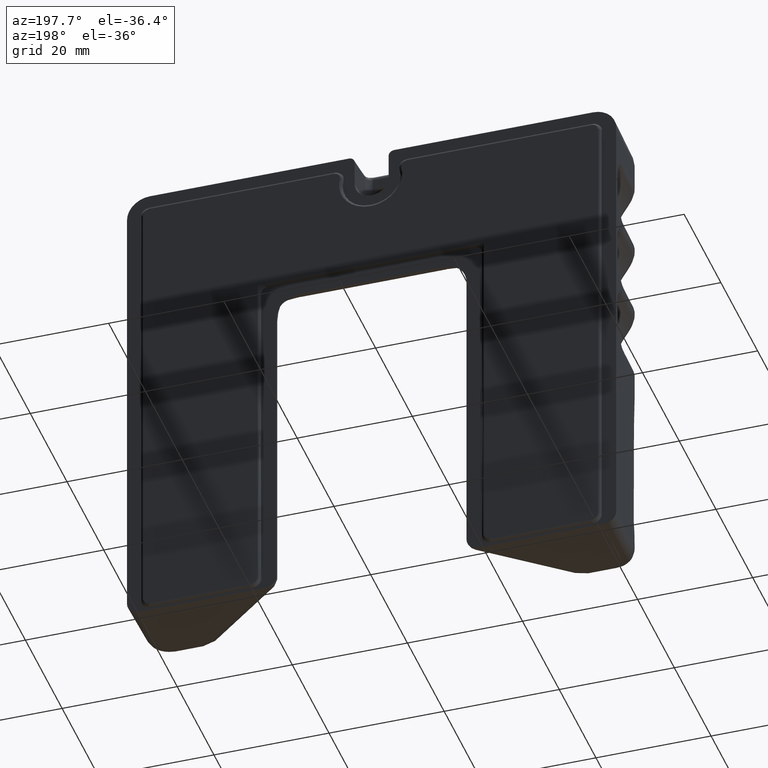
[diagram: clean part render]
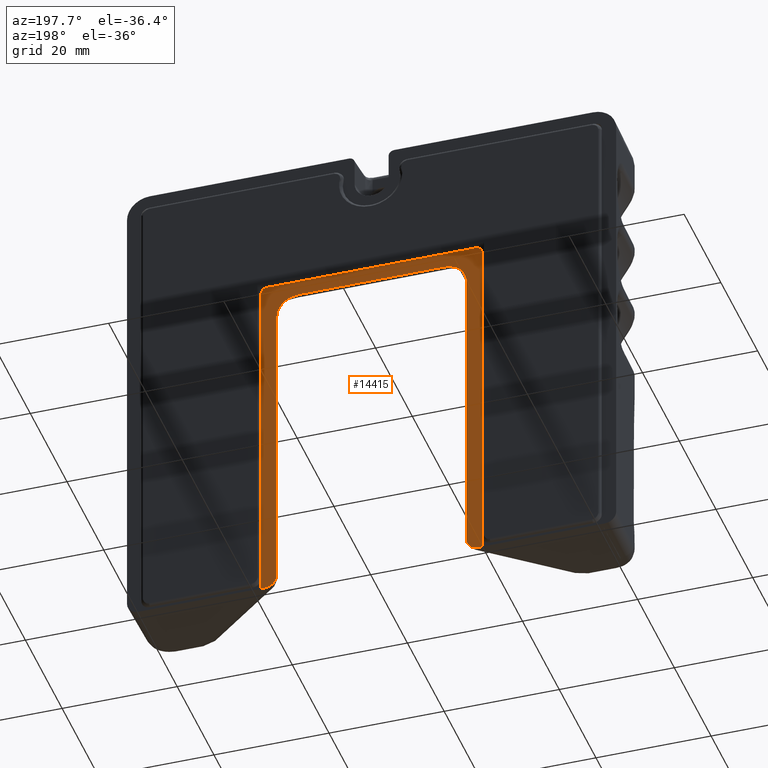
[diagram: same view with one face highlighted and labeled with its STEP entity id]
A machine part, auxiliary view. The second image highlights one B-rep face of the part: STEP entity #14415.
In plain terms, the highlighted face is a freeform B-spline surface patch.
Its self-contained STEP definition (entity closure, byte-faithful):
#11726=CARTESIAN_POINT('',(19.198063139288450,-0.499999999984567,1.698063139219495));
#11727=VERTEX_POINT('',#11726);
#11733=CARTESIAN_POINT('',(18.198063139290351,-0.499999999999945,2.698063139219500));
#11734=VERTEX_POINT('',#11733);
#11735=CARTESIAN_POINT('',(18.198063139290351,-0.499999999999945,2.698063139219500));
#11736=CARTESIAN_POINT('',(18.345379309349060,-0.500000000001553,2.698300975594655));
#11737=CARTESIAN_POINT('',(18.566047310219229,-0.500000000002642,2.648337149708755));
#11738=CARTESIAN_POINT('',(18.846381656512939,-0.500000000001154,2.475588377576360));
#11739=CARTESIAN_POINT('',(19.021190333574580,-0.499999999998116,2.287423140607872));
#11740=CARTESIAN_POINT('',(19.161434794748899,-0.499999999992543,2.017058390849730));
#11741=CARTESIAN_POINT('',(19.198177738437199,-0.499999999987791,1.820800222550557));
#11742=CARTESIAN_POINT('',(19.198063139288450,-0.499999999984567,1.698063139219495));
#11743=B_SPLINE_CURVE_WITH_KNOTS('',3,(#11735,#11736,#11737,#11738,#11739,#11740,#11741,#11742),.UNSPECIFIED.,.F.,.U.,(4,1,1,1,1,4),(0.000000217534111,0.441800759727600,0.662713451856316,0.981768884636849,1.202673225398145,1.570835744366782),.UNSPECIFIED.);
#11744=EDGE_CURVE('',#11734,#11727,#11743,.T.);
#11825=CARTESIAN_POINT('',(-18.198063139290749,-0.499999999999945,2.698063139219500));
#11826=VERTEX_POINT('',#11825);
#11832=CARTESIAN_POINT('',(-19.198063139222150,-0.499999999984567,1.698063139219495));
#11833=VERTEX_POINT('',#11832);
#11834=CARTESIAN_POINT('',(-19.198063139222150,-0.499999999984567,1.698063139219495));
#11835=CARTESIAN_POINT('',(-19.198274863167910,-0.499999999988435,1.845352698695875));
#11836=CARTESIAN_POINT('',(-19.137330755832242,-0.499999999994857,2.115155949413070));
#11837=CARTESIAN_POINT('',(-18.917993286070381,-0.500000000000437,2.418601101221528));
#11838=CARTESIAN_POINT('',(-18.606888732747471,-0.500000000002806,2.637663073999238));
#11839=CARTESIAN_POINT('',(-18.353571719177459,-0.500000000001642,2.698341549431434));
#11840=CARTESIAN_POINT('',(-18.198063139290749,-0.499999999999945,2.698063139219500));
#11841=B_SPLINE_CURVE_WITH_KNOTS('',3,(#11834,#11835,#11836,#11837,#11838,#11839,#11840),.UNSPECIFIED.,.F.,.U.,(4,1,1,1,4),(0.000000217532357,0.441800759701740,0.809930226240558,1.104490639122075,1.570835744278690),.UNSPECIFIED.);
#11842=EDGE_CURVE('',#11833,#11826,#11841,.T.);
#12062=CARTESIAN_POINT('',(18.198063139290351,-0.499999999999945,2.698063139219500));
#12063=CARTESIAN_POINT('',(-18.198063139290749,-0.499999999999945,2.698063139219500));
#12064=QUASI_UNIFORM_CURVE('',1,(#12062,#12063),.UNSPECIFIED.,.F.,.U.);
#12065=EDGE_CURVE('',#11734,#11826,#12064,.T.);
#12185=CARTESIAN_POINT('',(-19.198063139290451,-0.499999999999945,-58.999999999911402));
#12186=VERTEX_POINT('',#12185);
#12187=CARTESIAN_POINT('',(-19.198063139222150,-0.499999999984567,1.698063139219495));
#12188=CARTESIAN_POINT('',(-19.198063139290451,-0.499999999999945,-58.999999999911402));
#12189=QUASI_UNIFORM_CURVE('',1,(#12187,#12188),.UNSPECIFIED.,.F.,.U.);
#12190=EDGE_CURVE('',#11833,#12186,#12189,.T.);
#12205=CARTESIAN_POINT('',(19.198063139290351,-0.499999999999945,-58.999999999867697));
#12206=VERTEX_POINT('',#12205);
#12207=CARTESIAN_POINT('',(19.198063139288450,-0.499999999984567,1.698063139219495));
#12208=CARTESIAN_POINT('',(19.198063139290351,-0.499999999999945,-58.999999999867697));
#12209=QUASI_UNIFORM_CURVE('',1,(#12207,#12208),.UNSPECIFIED.,.F.,.U.);
#12210=EDGE_CURVE('',#11727,#12206,#12209,.T.);
#12775=CARTESIAN_POINT('',(-16.298632956855901,-0.500000000000000,-2.719094153172280));
#12776=VERTEX_POINT('',#12775);
#12788=CARTESIAN_POINT('',(-16.446659315282801,-0.500000000000000,-3.348939135636975));
#12789=VERTEX_POINT('',#12788);
#12797=CARTESIAN_POINT('',(-16.298632956855901,-0.500000000000000,-2.719094153172280));
#12798=CARTESIAN_POINT('',(-16.361248522337672,-0.500000000000000,-2.925625015089576));
#12799=CARTESIAN_POINT('',(-16.410720519325629,-0.500000000000000,-3.136139351958470));
#12800=CARTESIAN_POINT('',(-16.446659315282801,-0.500000000000000,-3.348939135636975));
#12801=B_SPLINE_CURVE_WITH_KNOTS('',3,(#12797,#12798,#12799,#12800),.UNSPECIFIED.,.F.,.U.,(4,4),(6.429248E-010,0.647447756906817),.UNSPECIFIED.);
#12802=EDGE_CURVE('',#12776,#12789,#12801,.T.);
#12871=CARTESIAN_POINT('',(-13.780905846815060,-0.500000000000000,-0.201367043136923));
#12872=VERTEX_POINT('',#12871);
#12884=CARTESIAN_POINT('',(-13.780905846815060,-0.500000000000000,-0.201367043136923));
#12885=CARTESIAN_POINT('',(-14.080842573910511,-0.500000000000000,-0.291039632090472));
#12886=CARTESIAN_POINT('',(-14.367880028113870,-0.500000000000000,-0.406653136922836));
#12887=CARTESIAN_POINT('',(-14.772538363730821,-0.500000000000000,-0.632154921716088));
#12888=CARTESIAN_POINT('',(-14.903100172115600,-0.500000000000000,-0.716018517901305));
#12889=CARTESIAN_POINT('',(-15.091473498432959,-0.500000000000000,-0.856835124789537));
#12890=CARTESIAN_POINT('',(-15.152829499428121,-0.500000000000000,-0.906175924452511));
#12891=CARTESIAN_POINT('',(-15.270856119547810,-0.500000000000000,-1.008281070637108));
#12892=CARTESIAN_POINT('',(-15.441647436504191,-0.500000000000000,-1.167138590662223));
#12893=CARTESIAN_POINT('',(-15.593858993271770,-0.500000000000000,-1.342944020126467));
#12894=CARTESIAN_POINT('',(-15.733955713787591,-0.500000000000000,-1.529800246026078));
#12895=CARTESIAN_POINT('',(-15.778636010906981,-0.500000000000000,-1.593926970928529));
#12896=CARTESIAN_POINT('',(-15.864012944349080,-0.500000000000000,-1.725814198657997));
#12897=CARTESIAN_POINT('',(-15.904327849315640,-0.500000000000000,-1.792994765142555));
#12898=CARTESIAN_POINT('',(-16.094117759669860,-0.500000000000000,-2.133244264479085));
#12899=CARTESIAN_POINT('',(-16.209425550039199,-0.500000000000000,-2.420713366518392));
#12900=CARTESIAN_POINT('',(-16.298632956855879,-0.500000000000000,-2.719094153172291));
#12901=B_SPLINE_CURVE_WITH_KNOTS('',3,(#12884,#12885,#12886,#12887,#12888,#12889,#12890,#12891,#12892,#12893,#12894,#12895,#12896,#12897,#12898,#12899,#12900),.UNSPECIFIED.,.F.,.U.,(4,2,2,2,1,2,2,2,4),(0.0,0.250000000000002,0.375000000000003,0.437500000000003,0.500000000000003,0.625000000000004,0.687500000000004,0.750000000000003,1.0),.UNSPECIFIED.);
#12902=EDGE_CURVE('',#12872,#12776,#12901,.T.);
#13005=CARTESIAN_POINT('',(-13.151060864280240,-0.500000000000000,-0.053340684704990));
#13006=VERTEX_POINT('',#13005);
#13007=CARTESIAN_POINT('',(-13.151060864280240,-0.500000000000000,-0.053340684704990));
#13008=CARTESIAN_POINT('',(-13.363864085242771,-0.500000000000000,-0.089252926298915));
#13009=CARTESIAN_POINT('',(-13.574386073158530,-0.500000000000000,-0.138725342376405));
#13010=CARTESIAN_POINT('',(-13.780905846815060,-0.500000000000000,-0.201367043136923));
#13011=B_SPLINE_CURVE_WITH_KNOTS('',3,(#13007,#13008,#13009,#13010),.UNSPECIFIED.,.F.,.U.,(4,4),(6.479680E-010,0.647449496093545),.UNSPECIFIED.);
#13012=EDGE_CURVE('',#13006,#12872,#13011,.T.);
#13144=CARTESIAN_POINT('',(13.780905846882400,-0.500000000000000,-0.201367043134239));
#13145=VERTEX_POINT('',#13144);
#13157=CARTESIAN_POINT('',(13.151060864346441,-0.500000000000000,-0.053340684704990));
#13158=VERTEX_POINT('',#13157);
#13166=CARTESIAN_POINT('',(13.780905846882400,-0.500000000000000,-0.201367043134239));
#13167=CARTESIAN_POINT('',(13.574378781963800,-0.499999999999999,-0.138751315556295));
#13168=CARTESIAN_POINT('',(13.363859044309979,-0.500000000000001,-0.089279401761617));
#13169=CARTESIAN_POINT('',(13.151060864346441,-0.500000000000000,-0.053340684704990));
#13170=B_SPLINE_CURVE_WITH_KNOTS('',3,(#13166,#13167,#13168,#13169),.UNSPECIFIED.,.F.,.U.,(4,4),(6.428654E-010,0.647447756976893),.UNSPECIFIED.);
#13171=EDGE_CURVE('',#13145,#13158,#13170,.T.);
#13240=CARTESIAN_POINT('',(16.298632956924799,-0.500000000000000,-2.719094153171055));
#13241=VERTEX_POINT('',#13240);
#13253=CARTESIAN_POINT('',(16.298632956924799,-0.500000000000000,-2.719094153171055));
#13254=CARTESIAN_POINT('',(16.208960367971070,-0.500000000000000,-2.419157426075236));
#13255=CARTESIAN_POINT('',(16.093346863133199,-0.500000000000000,-2.132119971874304));
#13256=CARTESIAN_POINT('',(15.867845078339490,-0.500000000000000,-1.727461636257350));
#13257=CARTESIAN_POINT('',(15.783981482154120,-0.500000000000000,-1.596899827872619));
#13258=CARTESIAN_POINT('',(15.643164875265670,-0.500000000000000,-1.408526501555391));
#13259=CARTESIAN_POINT('',(15.593824075602660,-0.500000000000000,-1.347170500560333));
#13260=CARTESIAN_POINT('',(15.491718929417980,-0.500000000000000,-1.229143880440812));
#13261=CARTESIAN_POINT('',(15.332861409392731,-0.500000000000000,-1.058352563484662));
#13262=CARTESIAN_POINT('',(15.157055979928369,-0.500000000000000,-0.906141006717314));
#13263=CARTESIAN_POINT('',(14.970199754028640,-0.500000000000000,-0.766044286201697));
#13264=CARTESIAN_POINT('',(14.906073029126150,-0.500000000000000,-0.721363989082381));
#13265=CARTESIAN_POINT('',(14.774185801396611,-0.500000000000000,-0.635987055640392));
#13266=CARTESIAN_POINT('',(14.707005234912080,-0.500000000000000,-0.595672150673927));
#13267=CARTESIAN_POINT('',(14.366755735575531,-0.500000000000000,-0.405882240320049));
#13268=CARTESIAN_POINT('',(14.079286633536251,-0.500000000000000,-0.290574449950862));
#13269=CARTESIAN_POINT('',(13.780905846882400,-0.500000000000000,-0.201367043134240));
#13270=B_SPLINE_CURVE_WITH_KNOTS('',3,(#13253,#13254,#13255,#13256,#13257,#13258,#13259,#13260,#13261,#13262,#13263,#13264,#13265,#13266,#13267,#13268,#13269),.UNSPECIFIED.,.F.,.U.,(4,2,2,2,1,2,2,2,4),(0.0,0.250000000000002,0.375000000000002,0.437500000000001,0.500000000000001,0.625000000000000,0.687500000000000,0.750000000000000,1.0),.UNSPECIFIED.);
#13271=EDGE_CURVE('',#13241,#13145,#13270,.T.);
#13374=CARTESIAN_POINT('',(16.446659315349049,-0.500000000000000,-3.348939135637210));
#13375=VERTEX_POINT('',#13374);
#13376=CARTESIAN_POINT('',(16.446659315349049,-0.500000000000000,-3.348939135637210));
#13377=CARTESIAN_POINT('',(16.410746995111889,-0.499999999999999,-3.136134304554827));
#13378=CARTESIAN_POINT('',(16.361274492954269,-0.500000000000001,-2.925617739128195));
#13379=CARTESIAN_POINT('',(16.298632956924799,-0.500000000000000,-2.719094153171055));
#13380=B_SPLINE_CURVE_WITH_KNOTS('',3,(#13376,#13377,#13378,#13379),.UNSPECIFIED.,.F.,.U.,(4,4),(6.479843E-010,0.647449496024783),.UNSPECIFIED.);
#13381=EDGE_CURVE('',#13375,#13241,#13380,.T.);
#13496=CARTESIAN_POINT('',(-16.500000000001648,-0.499999999984567,-4.0));
#13497=VERTEX_POINT('',#13496);
#13498=CARTESIAN_POINT('',(-16.446659315282801,-0.500000000000000,-3.348939135636975));
#13499=CARTESIAN_POINT('',(-16.482153722761321,-0.500000000005158,-3.564021777865554));
#13500=CARTESIAN_POINT('',(-16.500006611965791,-0.499999999999987,-3.782009576281765));
#13501=CARTESIAN_POINT('',(-16.500000000001648,-0.499999999984567,-4.0));
#13502=B_SPLINE_CURVE_WITH_KNOTS('',3,(#13498,#13499,#13500,#13501),.UNSPECIFIED.,.F.,.U.,(4,4),(1.782441E-009,0.653981770839763),.UNSPECIFIED.);
#13503=EDGE_CURVE('',#12789,#13497,#13502,.T.);
#13528=CARTESIAN_POINT('',(12.500000000067899,-0.500000000000000,0.0));
#13529=VERTEX_POINT('',#13528);
#13530=CARTESIAN_POINT('',(13.151060864346441,-0.500000000000000,-0.053340684704990));
#13531=CARTESIAN_POINT('',(12.935977684723310,-0.499999999999999,-0.017846374356520));
#13532=CARTESIAN_POINT('',(12.717989439537901,-0.500000000000000,0.000006848149082));
#13533=CARTESIAN_POINT('',(12.500000000067899,-0.500000000000000,0.0));
#13534=B_SPLINE_CURVE_WITH_KNOTS('',3,(#13530,#13531,#13532,#13533),.UNSPECIFIED.,.F.,.U.,(4,4),(1.782450E-009,0.653981770754134),.UNSPECIFIED.);
#13535=EDGE_CURVE('',#13158,#13529,#13534,.T.);
#13560=CARTESIAN_POINT('',(-16.500000000001648,-0.499999999984567,-56.999695343824698));
#13561=VERTEX_POINT('',#13560);
#13568=CARTESIAN_POINT('',(-18.500000000001599,-0.499999999984567,-58.999999999957602));
#13569=VERTEX_POINT('',#13568);
#13575=CARTESIAN_POINT('',(-16.500000000001648,-0.499999999984567,-56.999695343824698));
#13576=CARTESIAN_POINT('',(-16.499809841638491,-0.499999999987588,-57.228814500681729));
#13577=CARTESIAN_POINT('',(-16.562524448729999,-0.499999999991501,-57.588696398521321));
#13578=CARTESIAN_POINT('',(-16.780454265667480,-0.499999999994699,-58.049503210741591));
#13579=CARTESIAN_POINT('',(-17.029644175175999,-0.499999999995731,-58.377080397843002));
#13580=CARTESIAN_POINT('',(-17.340902296168700,-0.499999999995168,-58.645579727521593));
#13581=CARTESIAN_POINT('',(-17.812965938056461,-0.499999999992474,-58.913185858091410));
#13582=CARTESIAN_POINT('',(-18.221743392385271,-0.499999999988235,-59.000340117457611));
#13583=CARTESIAN_POINT('',(-18.500000000001599,-0.499999999984567,-58.999999999957602));
#13584=B_SPLINE_CURVE_WITH_KNOTS('',3,(#13575,#13576,#13577,#13578,#13579,#13580,#13581,#13582,#13583),.UNSPECIFIED.,.F.,.U.,(4,1,1,1,1,1,4),(0.000000109363754,0.687293337162465,1.080035986235856,1.521874711932265,1.914588347197155,2.307339897881460,3.141910788843523),.UNSPECIFIED.);
#13585=EDGE_CURVE('',#13561,#13569,#13584,.T.);
#14191=CARTESIAN_POINT('',(18.500000000074149,-0.499999999984567,-58.999999999957602));
#14192=VERTEX_POINT('',#14191);
#14199=CARTESIAN_POINT('',(16.500000000067949,-0.499999999984567,-56.999695343824698));
#14200=VERTEX_POINT('',#14199);
#14206=CARTESIAN_POINT('',(18.500000000074149,-0.499999999984567,-58.999999999957602));
#14207=CARTESIAN_POINT('',(18.270890632238888,-0.499999999987587,-59.000122893947918));
#14208=CARTESIAN_POINT('',(17.829176991036778,-0.499999999992392,-58.923208000282862));
#14209=CARTESIAN_POINT('',(17.233824064126789,-0.499999999995921,-58.595619569404157));
#14210=CARTESIAN_POINT('',(16.843616507302450,-0.499999999995386,-58.164875398922263));
#14211=CARTESIAN_POINT('',(16.570139349269080,-0.499999999991835,-57.621382200906567));
#14212=CARTESIAN_POINT('',(16.499778022349549,-0.499999999987803,-57.245185475170111));
#14213=CARTESIAN_POINT('',(16.500000000067949,-0.499999999984567,-56.999695343824698));
#14214=B_SPLINE_CURVE_WITH_KNOTS('',3,(#14206,#14207,#14208,#14209,#14210,#14211,#14212,#14213),.UNSPECIFIED.,.F.,.U.,(4,1,1,1,1,4),(0.000000109360554,0.687293337212586,1.325519836714177,2.012782309027213,2.405526365069259,3.141910789084816),.UNSPECIFIED.);
#14215=EDGE_CURVE('',#14192,#14200,#14214,.T.);
#14227=CARTESIAN_POINT('',(-18.500000000001599,-0.499999999984567,-58.999999999957602));
#14228=CARTESIAN_POINT('',(-19.198063139290451,-0.499999999999945,-58.999999999911402));
#14229=QUASI_UNIFORM_CURVE('',1,(#14227,#14228),.UNSPECIFIED.,.F.,.U.);
#14230=EDGE_CURVE('',#13569,#12186,#14229,.T.);
#14254=CARTESIAN_POINT('',(16.500000000067949,-0.499999999984567,-4.0));
#14255=VERTEX_POINT('',#14254);
#14261=CARTESIAN_POINT('',(16.500000000067949,-0.499999999984567,-4.0));
#14262=CARTESIAN_POINT('',(16.500000000067949,-0.499999999984567,-56.999695343824698));
#14263=QUASI_UNIFORM_CURVE('',1,(#14261,#14262),.UNSPECIFIED.,.F.,.U.);
#14264=EDGE_CURVE('',#14255,#14200,#14263,.T.);
#14277=CARTESIAN_POINT('',(-16.500000000001648,-0.499999999984567,-4.0));
#14278=CARTESIAN_POINT('',(-16.500000000001648,-0.499999999984567,-56.999695343824698));
#14279=QUASI_UNIFORM_CURVE('',1,(#14277,#14278),.UNSPECIFIED.,.F.,.U.);
#14280=EDGE_CURVE('',#13497,#13561,#14279,.T.);
#14292=CARTESIAN_POINT('',(-12.500000000001720,-0.500000000000000,0.0));
#14293=VERTEX_POINT('',#14292);
#14299=CARTESIAN_POINT('',(-12.500000000001720,-0.500000000000000,0.0));
#14300=CARTESIAN_POINT('',(12.500000000067899,-0.500000000000000,0.0));
#14301=QUASI_UNIFORM_CURVE('',1,(#14299,#14300),.UNSPECIFIED.,.F.,.U.);
#14302=EDGE_CURVE('',#14293,#13529,#14301,.T.);
#14323=CARTESIAN_POINT('',(16.500000000067949,-0.499999999984567,-4.0));
#14324=CARTESIAN_POINT('',(16.500012759114760,-0.499999999994836,-3.782006574530704));
#14325=CARTESIAN_POINT('',(16.482147217338039,-0.500000000000002,-3.564021346018313));
#14326=CARTESIAN_POINT('',(16.446659315349049,-0.500000000000000,-3.348939135637210));
#14327=B_SPLINE_CURVE_WITH_KNOTS('',3,(#14323,#14324,#14325,#14326),.UNSPECIFIED.,.F.,.U.,(4,4),(1.782432E-009,0.653981770839528),.UNSPECIFIED.);
#14328=EDGE_CURVE('',#14255,#13375,#14327,.T.);
#14349=CARTESIAN_POINT('',(-12.500000000001720,-0.500000000000000,0.0));
#14350=CARTESIAN_POINT('',(-12.717986897178021,-0.500000000000000,0.000006272804548));
#14351=CARTESIAN_POINT('',(-12.935985035156010,-0.499999999999999,-0.017844606376493));
#14352=CARTESIAN_POINT('',(-13.151060864280240,-0.500000000000000,-0.053340684704990));
#14353=B_SPLINE_CURVE_WITH_KNOTS('',3,(#14349,#14350,#14351,#14352),.UNSPECIFIED.,.F.,.U.,(4,4),(1.782400E-009,0.653981770754113),.UNSPECIFIED.);
#14354=EDGE_CURVE('',#14293,#13006,#14353,.T.);
#14364=CARTESIAN_POINT('',(18.500000000074149,-0.499999999984567,-58.999999999957602));
#14365=CARTESIAN_POINT('',(19.198063139290351,-0.499999999999945,-58.999999999867697));
#14366=QUASI_UNIFORM_CURVE('',1,(#14364,#14365),.UNSPECIFIED.,.F.,.U.);
#14367=EDGE_CURVE('',#14192,#12206,#14366,.T.);
#14386=CARTESIAN_POINT('',(-21.115949572486429,-0.500000000000000,-62.081818134176679));
#14387=CARTESIAN_POINT('',(-21.115949572486429,-0.500000000000000,5.779882928309593));
#14388=CARTESIAN_POINT('',(21.115950602350679,-0.500000000000000,-62.081818134176672));
#14389=CARTESIAN_POINT('',(21.115950602350679,-0.500000000000000,5.779882928309593));
#14390=B_SPLINE_SURFACE_WITH_KNOTS('',1,1,((#14386,#14388),(#14387,#14389)),.UNSPECIFIED.,.F.,.F.,.U.,(2,2),(2,2),(0.0,67.861701062486276),(0.0,42.231900174837108),.UNSPECIFIED.);
#14391=ORIENTED_EDGE('',*,*,#12190,.F.);
#14392=ORIENTED_EDGE('',*,*,#11842,.T.);
#14393=ORIENTED_EDGE('',*,*,#12065,.F.);
#14394=ORIENTED_EDGE('',*,*,#11744,.T.);
#14395=ORIENTED_EDGE('',*,*,#12210,.T.);
#14396=ORIENTED_EDGE('',*,*,#14367,.F.);
#14397=ORIENTED_EDGE('',*,*,#14215,.T.);
#14398=ORIENTED_EDGE('',*,*,#14264,.F.);
#14399=ORIENTED_EDGE('',*,*,#14328,.T.);
#14400=ORIENTED_EDGE('',*,*,#13381,.T.);
#14401=ORIENTED_EDGE('',*,*,#13271,.T.);
#14402=ORIENTED_EDGE('',*,*,#13171,.T.);
#14403=ORIENTED_EDGE('',*,*,#13535,.T.);
#14404=ORIENTED_EDGE('',*,*,#14302,.F.);
#14405=ORIENTED_EDGE('',*,*,#14354,.T.);
#14406=ORIENTED_EDGE('',*,*,#13012,.T.);
#14407=ORIENTED_EDGE('',*,*,#12902,.T.);
#14408=ORIENTED_EDGE('',*,*,#12802,.T.);
#14409=ORIENTED_EDGE('',*,*,#13503,.T.);
#14410=ORIENTED_EDGE('',*,*,#14280,.T.);
#14411=ORIENTED_EDGE('',*,*,#13585,.T.);
#14412=ORIENTED_EDGE('',*,*,#14230,.T.);
#14413=EDGE_LOOP('',(#14391,#14392,#14393,#14394,#14395,#14396,#14397,#14398,#14399,#14400,#14401,#14402,#14403,#14404,#14405,#14406,#14407,#14408,#14409,#14410,#14411,#14412));
#14414=FACE_OUTER_BOUND('',#14413,.T.);
#14415=ADVANCED_FACE('',(#14414),#14390,.T.);